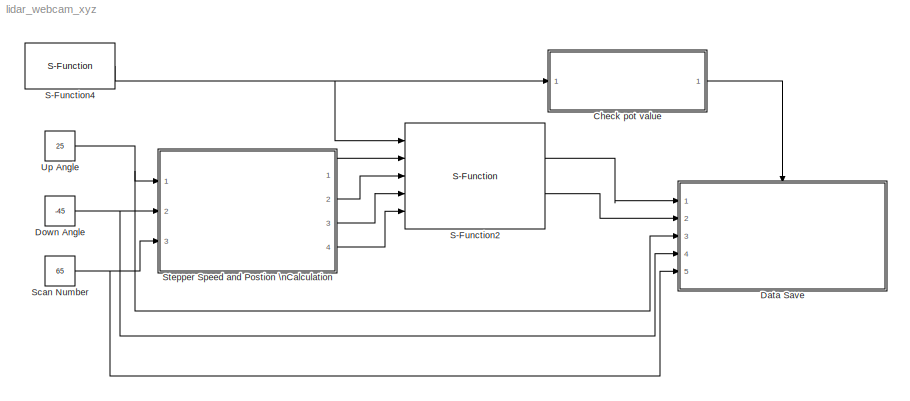
MODEL lidar_webcam_xyz
KIND model
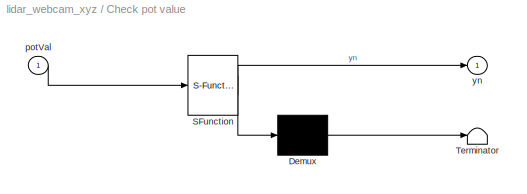
BLOCK [SubSystem] Check pot value
  FunctionWithSeparateData = off
  MaskDescription = Embedded MATLAB block
  MaskDisplay = disp('check_pot_val');
  MaskHideContents = off
  MaskIconFrame = on
  MaskIconOpaque = off
  MaskIconRotate = none
  MaskIconUnits = autoscale
  MaskPortRotate = default
  MaskSelfModifiable = on
  MaskType = Stateflow
  MinAlgLoopOccurrences = off
  Opaque = off
  PermitHierarchicalResolution = ExplicitOnly
  Ports = [1, 1]
  PropExecContextOutsideSubsystem = off
  RTWSystemCode = Auto
  RequestExecContextInheritance = off
BLOCK [Demux] Check pot value/ Demux 
  Outputs = 1
  Ports = [1, 1]
BLOCK [S-Function] Check pot value/ SFunction 
  EnableBusSupport = on
  FunctionName = sf_sfun
  PortCounts = [1 2]
  Ports = [1, 2]
  Tag = Stateflow S-Function lidar_webcam_xyz 1
BLOCK [Terminator] Check pot value/ Terminator 
BLOCK [Inport] Check pot value/potVal
  IconDisplay = Port number
  OutDataType = sfix(16)
  OutScaling = 2^0
BLOCK [Outport] Check pot value/yn
  IconDisplay = Port number
  OutDataType = sfix(16)
  OutScaling = 2^0
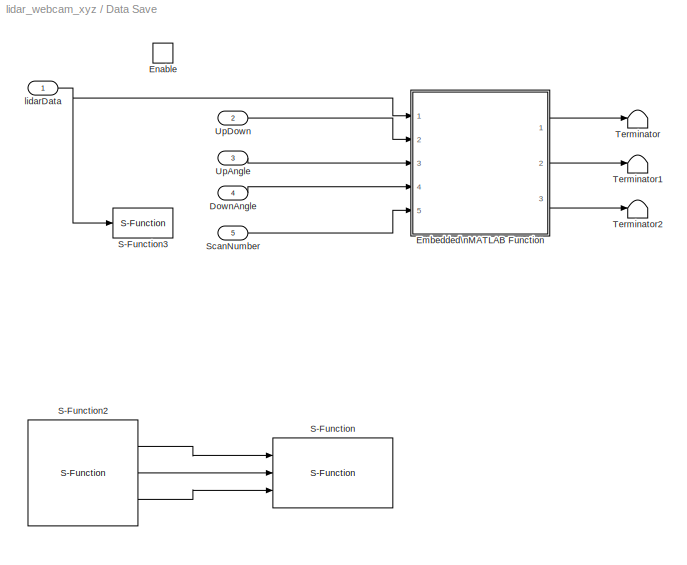
BLOCK [SubSystem] Data Save
  FunctionWithSeparateData = off
  MaskHideContents = off
  MinAlgLoopOccurrences = off
  Opaque = off
  Ports = [5, 0, 1]
  PropExecContextOutsideSubsystem = off
  RTWSystemCode = Auto
  RequestExecContextInheritance = off
  TreatAsAtomicUnit = on
BLOCK [Inport] Data Save/DownAngle
  IconDisplay = Port number
  OutDataType = fixdt(1, 16)
  OutScaling = 2^0
  Port = 4
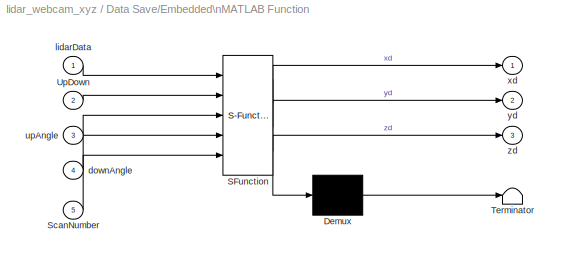
BLOCK [SubSystem] Data Save/Embedded\nMATLAB Function
  FunctionWithSeparateData = off
  MaskDescription = Embedded MATLAB block
  MaskDisplay = disp('xyz_calc');
  MaskHideContents = off
  MaskIconFrame = on
  MaskIconOpaque = off
  MaskIconRotate = none
  MaskIconUnits = autoscale
  MaskPortRotate = default
  MaskSelfModifiable = on
  MaskType = Stateflow
  MinAlgLoopOccurrences = off
  Opaque = off
  PermitHierarchicalResolution = ExplicitOnly
  Ports = [5, 3]
  PropExecContextOutsideSubsystem = off
  RTWSystemCode = Auto
  RequestExecContextInheritance = off
BLOCK [Demux] Data Save/Embedded\nMATLAB Function/ Demux 
  Outputs = 1
  Ports = [1, 1]
BLOCK [S-Function] Data Save/Embedded\nMATLAB Function/ SFunction 
  EnableBusSupport = on
  FunctionName = sf_sfun
  PortCounts = [5 4]
  Ports = [5, 4]
  Tag = Stateflow S-Function lidar_webcam_xyz 2
BLOCK [Terminator] Data Save/Embedded\nMATLAB Function/ Terminator 
BLOCK [Inport] Data Save/Embedded\nMATLAB Function/ScanNumber
  IconDisplay = Port number
  Port = 5
BLOCK [Inport] Data Save/Embedded\nMATLAB Function/UpDown
  IconDisplay = Port number
  Port = 2
BLOCK [Inport] Data Save/Embedded\nMATLAB Function/downAngle
  IconDisplay = Port number
  Port = 4
BLOCK [Inport] Data Save/Embedded\nMATLAB Function/lidarData
  IconDisplay = Port number
  OutDataType = sfix(16)
  OutScaling = 2^0
BLOCK [Inport] Data Save/Embedded\nMATLAB Function/upAngle
  IconDisplay = Port number
  Port = 3
BLOCK [Outport] Data Save/Embedded\nMATLAB Function/xd
  IconDisplay = Port number
  OutDataType = sfix(16)
  OutScaling = 2^0
BLOCK [Outport] Data Save/Embedded\nMATLAB Function/yd
  IconDisplay = Port number
  Port = 2
BLOCK [Outport] Data Save/Embedded\nMATLAB Function/zd
  IconDisplay = Port number
  Port = 3
BLOCK [EnablePort] Data Save/Enable
  Ports = []
BLOCK [S-Function] Data Save/S-Function
  EnableBusSupport = off
  FunctionName = videoExport_v2
  Ports = [3]
BLOCK [S-Function] Data Save/S-Function2
  EnableBusSupport = off
  FunctionName = WebcamTest_v2
  Ports = [0, 3]
BLOCK [S-Function] Data Save/S-Function3
  EnableBusSupport = off
  FunctionName = lidarExport
  Ports = [1]
BLOCK [Inport] Data Save/ScanNumber
  IconDisplay = Port number
  OutDataType = fixdt(1, 16)
  OutScaling = 2^0
  Port = 5
BLOCK [Terminator] Data Save/Terminator
BLOCK [Terminator] Data Save/Terminator1
BLOCK [Terminator] Data Save/Terminator2
BLOCK [Inport] Data Save/UpAngle
  IconDisplay = Port number
  OutDataType = fixdt(1, 16)
  OutScaling = 2^0
  Port = 3
BLOCK [Inport] Data Save/UpDown
  IconDisplay = Port number
  OutDataType = fixdt(1, 16)
  OutScaling = 2^0
  Port = 2
BLOCK [Inport] Data Save/lidarData
  IconDisplay = Port number
  OutDataType = fixdt(1, 16)
  OutScaling = 2^0
BLOCK [Constant] Down Angle
  OutDataType = fixdt(1, 16)
  OutScaling = 2^0
  Value = -45
BLOCK [S-Function] S-Function2
  EnableBusSupport = off
  FunctionName = lidar_zero_test_v4
  Ports = [5, 2]
BLOCK [S-Function] S-Function4
  EnableBusSupport = off
  FunctionName = pot_readerV2
  Ports = [0, 1]
BLOCK [Constant] Scan Number
  OutDataType = fixdt(1, 16)
  OutScaling = 2^0
  Value = 65
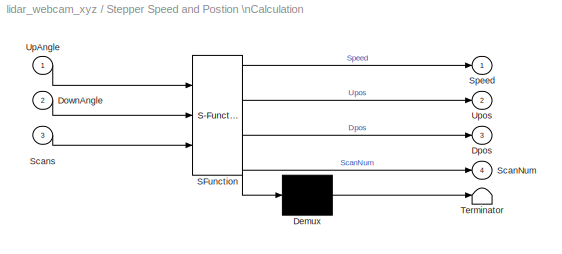
BLOCK [SubSystem] Stepper Speed and Postion \nCalculation
  FunctionWithSeparateData = off
  MaskDescription = Embedded MATLAB block
  MaskDisplay = disp('stepper_calc');
  MaskHideContents = off
  MaskIconFrame = on
  MaskIconOpaque = off
  MaskIconRotate = none
  MaskIconUnits = autoscale
  MaskPortRotate = default
  MaskSelfModifiable = on
  MaskType = Stateflow
  MinAlgLoopOccurrences = off
  Opaque = off
  PermitHierarchicalResolution = ExplicitOnly
  Ports = [3, 4]
  PropExecContextOutsideSubsystem = off
  RTWSystemCode = Auto
  RequestExecContextInheritance = off
BLOCK [Demux] Stepper Speed and Postion \nCalculation/ Demux 
  Outputs = 1
  Ports = [1, 1]
BLOCK [S-Function] Stepper Speed and Postion \nCalculation/ SFunction 
  EnableBusSupport = on
  FunctionName = sf_sfun
  PortCounts = [3 5]
  Ports = [3, 5]
  Tag = Stateflow S-Function lidar_webcam_xyz 3
BLOCK [Terminator] Stepper Speed and Postion \nCalculation/ Terminator 
BLOCK [Inport] Stepper Speed and Postion \nCalculation/DownAngle
  IconDisplay = Port number
  Port = 2
BLOCK [Outport] Stepper Speed and Postion \nCalculation/Dpos
  IconDisplay = Port number
  Port = 3
BLOCK [Outport] Stepper Speed and Postion \nCalculation/ScanNum
  IconDisplay = Port number
  Port = 4
BLOCK [Inport] Stepper Speed and Postion \nCalculation/Scans
  IconDisplay = Port number
  Port = 3
BLOCK [Outport] Stepper Speed and Postion \nCalculation/Speed
  IconDisplay = Port number
  OutDataType = sfix(16)
  OutScaling = 2^0
BLOCK [Inport] Stepper Speed and Postion \nCalculation/UpAngle
  IconDisplay = Port number
  OutDataType = sfix(16)
  OutScaling = 2^0
BLOCK [Outport] Stepper Speed and Postion \nCalculation/Upos
  IconDisplay = Port number
  Port = 2
BLOCK [Constant] Up Angle
  OutDataType = fixdt(1, 16)
  OutScaling = 2^0
  Value = 25
LINE Check pot value/ Demux :1 -> Check pot value/ Terminator :1
LINE Check pot value/ SFunction :1 -> Check pot value/ Demux :1
LINE Check pot value/ SFunction :2 -> Check pot value/yn:1
LINE Check pot value/potVal:1 -> Check pot value/ SFunction :1
LINE Check pot value:1 -> Data Save:enable
LINE Data Save/DownAngle:1 -> Data Save/Embedded\nMATLAB Function:4
LINE Data Save/Embedded\nMATLAB Function/ Demux :1 -> Data Save/Embedded\nMATLAB Function/ Terminator :1
LINE Data Save/Embedded\nMATLAB Function/ SFunction :1 -> Data Save/Embedded\nMATLAB Function/ Demux :1
LINE Data Save/Embedded\nMATLAB Function/ SFunction :2 -> Data Save/Embedded\nMATLAB Function/xd:1
LINE Data Save/Embedded\nMATLAB Function/ SFunction :3 -> Data Save/Embedded\nMATLAB Function/yd:1
LINE Data Save/Embedded\nMATLAB Function/ SFunction :4 -> Data Save/Embedded\nMATLAB Function/zd:1
LINE Data Save/Embedded\nMATLAB Function/ScanNumber:1 -> Data Save/Embedded\nMATLAB Function/ SFunction :5
LINE Data Save/Embedded\nMATLAB Function/UpDown:1 -> Data Save/Embedded\nMATLAB Function/ SFunction :2
LINE Data Save/Embedded\nMATLAB Function/downAngle:1 -> Data Save/Embedded\nMATLAB Function/ SFunction :4
LINE Data Save/Embedded\nMATLAB Function/lidarData:1 -> Data Save/Embedded\nMATLAB Function/ SFunction :1
LINE Data Save/Embedded\nMATLAB Function/upAngle:1 -> Data Save/Embedded\nMATLAB Function/ SFunction :3
LINE Data Save/Embedded\nMATLAB Function:1 -> Data Save/Terminator:1
LINE Data Save/Embedded\nMATLAB Function:2 -> Data Save/Terminator1:1
LINE Data Save/Embedded\nMATLAB Function:3 -> Data Save/Terminator2:1
LINE Data Save/S-Function2:1 -> Data Save/S-Function:1
LINE Data Save/S-Function2:2 -> Data Save/S-Function:2
LINE Data Save/S-Function2:3 -> Data Save/S-Function:3
LINE Data Save/ScanNumber:1 -> Data Save/Embedded\nMATLAB Function:5
LINE Data Save/UpAngle:1 -> Data Save/Embedded\nMATLAB Function:3
LINE Data Save/UpDown:1 -> Data Save/Embedded\nMATLAB Function:2
NET Data Save/lidarData:1 -> Data Save/Embedded\nMATLAB Function:1, Data Save/S-Function3:1
NET Down Angle:1 -> Data Save:4, Stepper Speed and Postion \nCalculation:2
LINE S-Function2:1 -> Data Save:1
LINE S-Function2:2 -> Data Save:2
NET S-Function4:1 -> Check pot value:1, S-Function2:1
NET Scan Number:1 -> Data Save:5, Stepper Speed and Postion \nCalculation:3
LINE Stepper Speed and Postion \nCalculation/ Demux :1 -> Stepper Speed and Postion \nCalculation/ Terminator :1
LINE Stepper Speed and Postion \nCalculation/ SFunction :1 -> Stepper Speed and Postion \nCalculation/ Demux :1
LINE Stepper Speed and Postion \nCalculation/ SFunction :2 -> Stepper Speed and Postion \nCalculation/Speed:1
LINE Stepper Speed and Postion \nCalculation/ SFunction :3 -> Stepper Speed and Postion \nCalculation/Upos:1
LINE Stepper Speed and Postion \nCalculation/ SFunction :4 -> Stepper Speed and Postion \nCalculation/Dpos:1
LINE Stepper Speed and Postion \nCalculation/ SFunction :5 -> Stepper Speed and Postion \nCalculation/ScanNum:1
LINE Stepper Speed and Postion \nCalculation/DownAngle:1 -> Stepper Speed and Postion \nCalculation/ SFunction :2
LINE Stepper Speed and Postion \nCalculation/Scans:1 -> Stepper Speed and Postion \nCalculation/ SFunction :3
LINE Stepper Speed and Postion \nCalculation/UpAngle:1 -> Stepper Speed and Postion \nCalculation/ SFunction :1
LINE Stepper Speed and Postion \nCalculation:1 -> S-Function2:2
LINE Stepper Speed and Postion \nCalculation:2 -> S-Function2:3
LINE Stepper Speed and Postion \nCalculation:3 -> S-Function2:4
LINE Stepper Speed and Postion \nCalculation:4 -> S-Function2:5
NET Up Angle:1 -> Data Save:3, Stepper Speed and Postion \nCalculation:1
note: NET lines group one-source signal fan-out (src -> all destinations, sorted); 1:1 wires keep LINE
CHART Check pot value states=1 transitions=1
  STATE_LABEL 'eML_blk_kernel()'
CHART Data Save/Embedded\nMATLAB Function states=1 transitions=1
  STATE_LABEL 'eML_blk_kernel()'
CHART Stepper Speed and Postion \nCalculation states=1 transitions=1
  STATE_LABEL 'eML_blk_kernel()'
